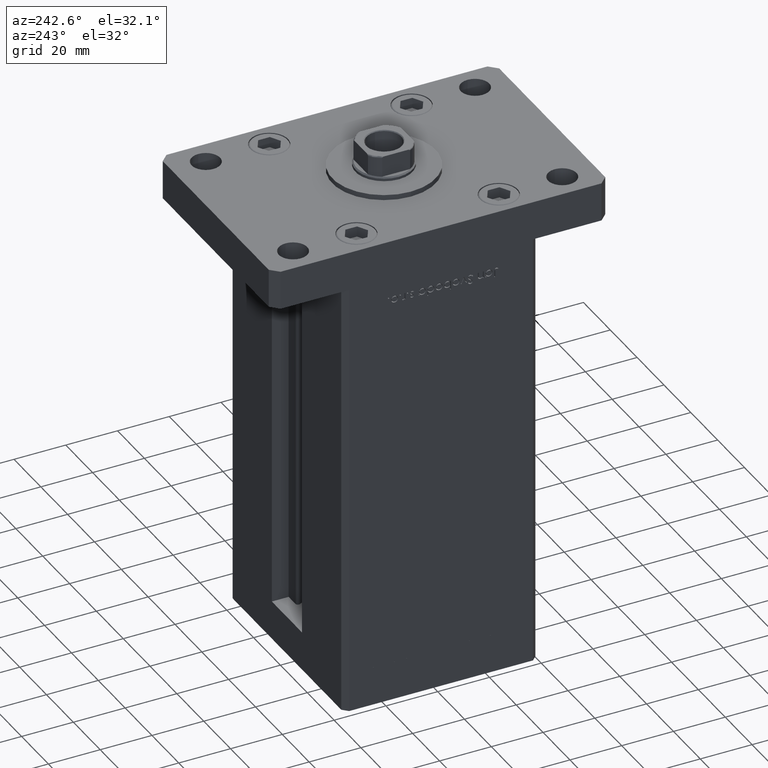
[diagram: clean part render]
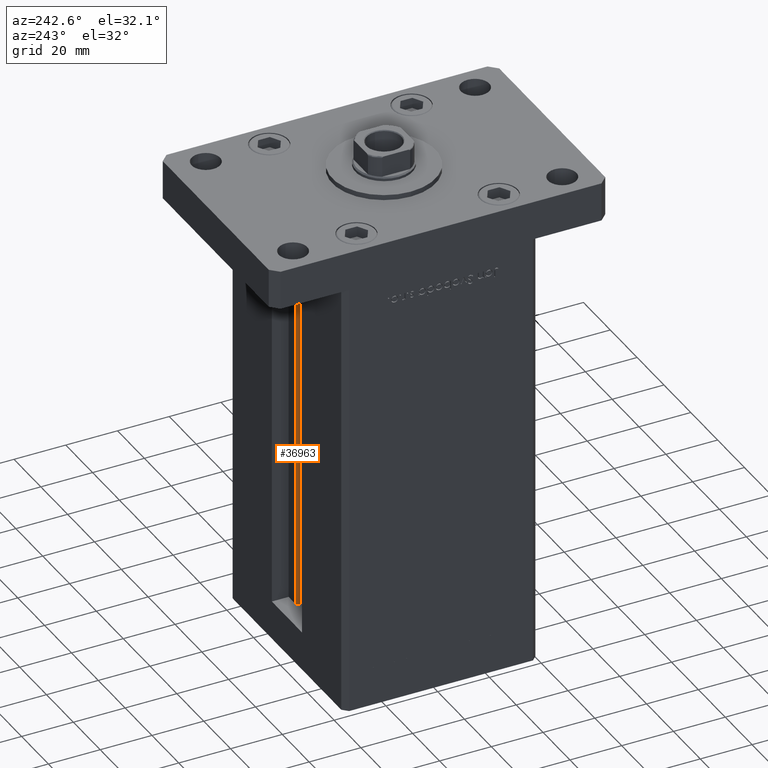
[diagram: same view with one face highlighted and labeled with its STEP entity id]
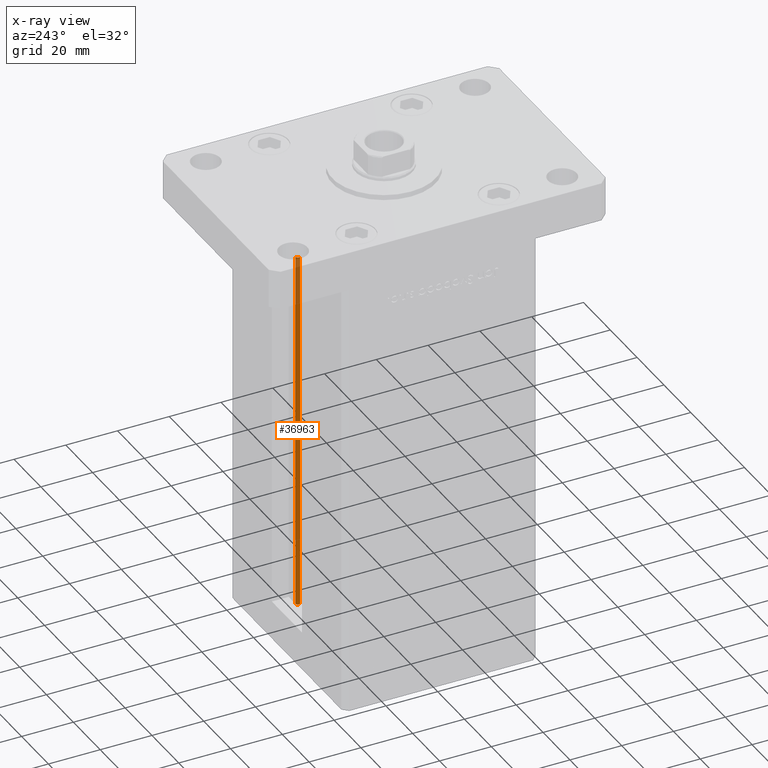
[diagram: x-ray of the same camera — body ghosted, the highlighted face saturated]
A machine part, auxiliary view. The second image highlights one B-rep face of the part: STEP entity #36963.
The next image is the same camera in x-ray: the body ghosted, the highlighted face saturated — about 13% of this face is hidden behind the body in this view.
In plain terms, the highlighted cylindrical surface (edge-blend (fillet) strip) has radius 0.9333 mm, axis along (0, 0, 1).
Its self-contained STEP definition (entity closure, byte-faithful):
#744 = VECTOR ( 'NONE', #13954, 1000.000000000000000 ) ;
#4272 = DIRECTION ( 'NONE',  ( -0.000000000000000000, -0.000000000000000000, 1.000000000000000000 ) ) ;
#4503 = CYLINDRICAL_SURFACE ( 'NONE', #7454, 0.9333333333340015914 ) ;
#5401 = CIRCLE ( 'NONE', #47825, 0.9333333333340015914 ) ;
#7454 = AXIS2_PLACEMENT_3D ( 'NONE', #28641, #49539, #29709 ) ;
#7711 = CARTESIAN_POINT ( 'NONE',  ( 6.183333333333999704, 30.06666666666599141, 0.000000000000000000 ) ) ;
#9242 = CARTESIAN_POINT ( 'NONE',  ( 6.183333333333999704, 30.06666666666599141, 140.5000000000000000 ) ) ;
#10969 = CARTESIAN_POINT ( 'NONE',  ( 5.375042956467943611, 29.59999999999899245, 0.000000000000000000 ) ) ;
#13954 = DIRECTION ( 'NONE',  ( -0.000000000000000000, -0.000000000000000000, 1.000000000000000000 ) ) ;
#16700 = FACE_OUTER_BOUND ( 'NONE', #32149, .T. ) ;
#16974 = EDGE_CURVE ( 'NONE', #30827, #40241, #45052, .T. ) ;
#18697 = DIRECTION ( 'NONE',  ( 0.000000000000000000, 0.000000000000000000, -1.000000000000000000 ) ) ;
#19280 = EDGE_CURVE ( 'NONE', #47970, #40241, #21325, .T. ) ;
#21325 = LINE ( 'NONE', #45238, #27807 ) ;
#23486 = EDGE_CURVE ( 'NONE', #24722, #47970, #5401, .T. ) ;
#24722 = VERTEX_POINT ( 'NONE', #52963 ) ;
#25814 = ORIENTED_EDGE ( 'NONE', *, *, #16974, .T. ) ;
#27807 = VECTOR ( 'NONE', #4272, 1000.000000000000000 ) ;
#28584 = AXIS2_PLACEMENT_3D ( 'NONE', #9242, #18697, #35258 ) ;
#28641 = CARTESIAN_POINT ( 'NONE',  ( 6.183333333333999704, 30.06666666666599141, 0.000000000000000000 ) ) ;
#29709 = DIRECTION ( 'NONE',  ( 1.000000000000000000, 0.000000000000000000, 0.000000000000000000 ) ) ;
#30827 = VERTEX_POINT ( 'NONE', #44331 ) ;
#31685 = ORIENTED_EDGE ( 'NONE', *, *, #19280, .F. ) ;
#32149 = EDGE_LOOP ( 'NONE', ( #31685, #35751, #50787, #25814 ) ) ;
#35258 = DIRECTION ( 'NONE',  ( 1.000000000000000000, 0.000000000000000000, 0.000000000000000000 ) ) ;
#35751 = ORIENTED_EDGE ( 'NONE', *, *, #23486, .F. ) ;
#36963 = ADVANCED_FACE ( 'NONE', ( #16700 ), #4503, .T. ) ;
#37264 = DIRECTION ( 'NONE',  ( 1.000000000000000000, 0.000000000000000000, 0.000000000000000000 ) ) ;
#40241 = VERTEX_POINT ( 'NONE', #49220 ) ;
#42986 = LINE ( 'NONE', #10969, #744 ) ;
#44083 = EDGE_CURVE ( 'NONE', #24722, #30827, #42986, .T. ) ;
#44331 = CARTESIAN_POINT ( 'NONE',  ( 5.375042956467944499, 29.59999999999898890, 140.5000000000000000 ) ) ;
#45052 = CIRCLE ( 'NONE', #28584, 0.9333333333340015914 ) ;
#45238 = CARTESIAN_POINT ( 'NONE',  ( 6.183333333333999704, 30.99999999999999289, 0.000000000000000000 ) ) ;
#45665 = DIRECTION ( 'NONE',  ( -0.000000000000000000, -0.000000000000000000, -1.000000000000000000 ) ) ;
#45991 = CARTESIAN_POINT ( 'NONE',  ( 6.183333333333999704, 30.99999999999999289, 0.000000000000000000 ) ) ;
#47825 = AXIS2_PLACEMENT_3D ( 'NONE', #7711, #45665, #37264 ) ;
#47970 = VERTEX_POINT ( 'NONE', #45991 ) ;
#49220 = CARTESIAN_POINT ( 'NONE',  ( 6.183333333333999704, 30.99999999999999289, 140.5000000000000000 ) ) ;
#49539 = DIRECTION ( 'NONE',  ( -0.000000000000000000, -0.000000000000000000, 1.000000000000000000 ) ) ;
#50787 = ORIENTED_EDGE ( 'NONE', *, *, #44083, .T. ) ;
#52963 = CARTESIAN_POINT ( 'NONE',  ( 5.375042956467943611, 29.59999999999899245, 0.000000000000000000 ) ) ;